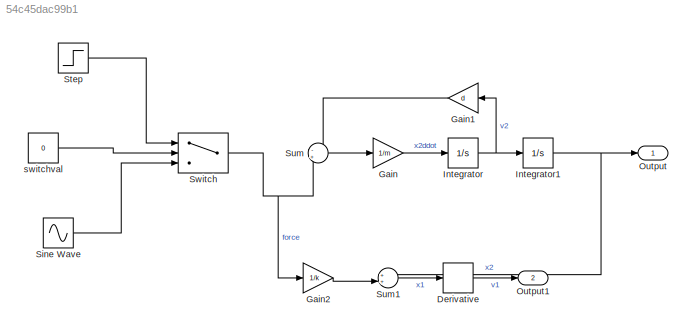
MODEL slx_54c45dac99b1
KIND model
CONFIG AbsTol = auto
CONFIG EnableMultiTasking = off
CONFIG FixedStep = auto
CONFIG MaxStep = 0.001
CONFIG MinStep = auto
CONFIG RelTol = 1e-3
CONFIG SampleTimeConstraint = Unconstrained
CONFIG SolverName = ode45
CONFIG StartTime = 0.0
CONFIG StopTime = 0.25
BLOCK [Derivative] Derivative
BLOCK [Gain] Gain
  Gain = 1/m
BLOCK [Gain] Gain1
  Gain = d
BLOCK [Gain] Gain2
  Gain = 1/k
BLOCK [Integrator] Integrator
BLOCK [Integrator] Integrator1
BLOCK [Outport] Output
BLOCK [Outport] Output1
  Port = 2
BLOCK [Sin] Sine Wave
  Frequency = 200
  SampleTime = 0
BLOCK [Step] Step
  SampleTime = 0
BLOCK [Sum] Sum
  Inputs = -+
BLOCK [Sum] Sum1
  Inputs = ++|
BLOCK [Switch] Switch
  Criteria = u2 > Threshold
  InputSameDT = off
  SaturateOnIntegerOverflow = off
BLOCK [Constant] switchval
  Value = 0
LINE Derivative:1 -> Output1:1
LINE Gain1:1 -> Sum:1
LINE Gain2:1 -> Sum1:2
LINE Gain:1 -> Integrator:1
NET Integrator1:1 -> Output:1, Sum1:1
NET Integrator:1 -> Gain1:1, Integrator1:1
LINE Sine Wave:1 -> Switch:3
LINE Step:1 -> Switch:1
LINE Sum1:1 -> Derivative:1
LINE Sum:1 -> Gain:1
NET Switch:1 -> Gain2:1, Sum:2
LINE switchval:1 -> Switch:2
note: NET lines group one-source signal fan-out (src -> all destinations, sorted); 1:1 wires keep LINE
